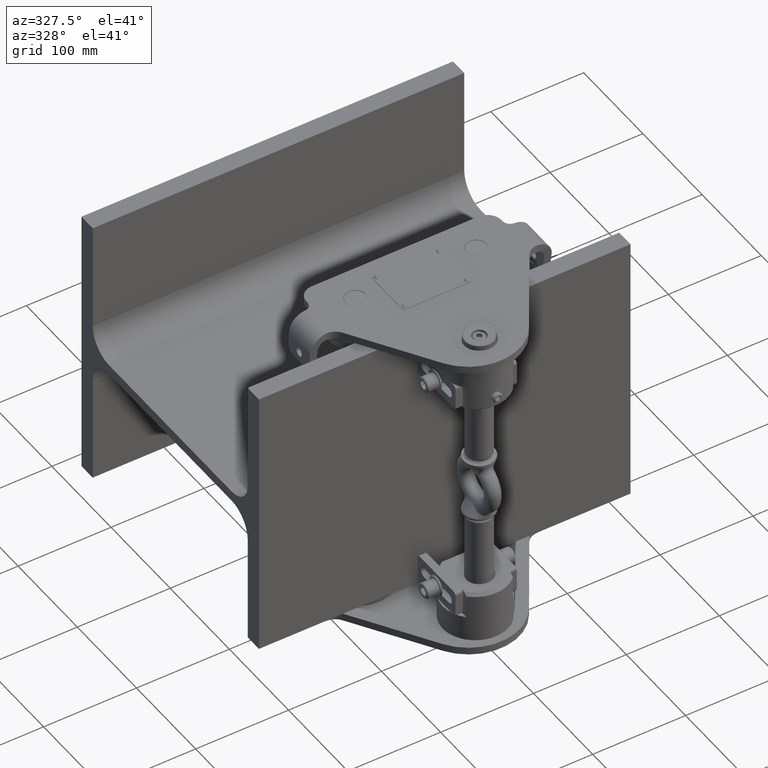
[diagram: clean part render]
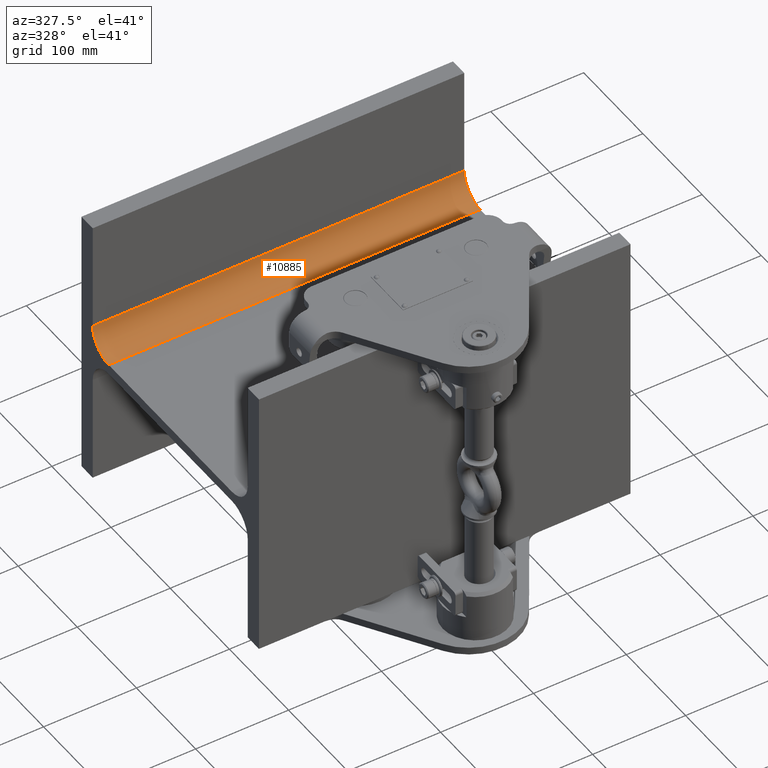
[diagram: same view with one face highlighted and labeled with its STEP entity id]
A machine part, auxiliary view. The second image highlights one B-rep face of the part: STEP entity #10885.
In plain terms, the highlighted cylindrical surface (edge-blend (fillet) strip) has radius 27 mm, axis along (1, 0, 0).
Its self-contained STEP definition (entity closure, byte-faithful):
#3310 = EDGE_CURVE ( 'NONE', #29865, #9961, #39690, .T. ) ;
#3352 = CARTESIAN_POINT ( 'NONE',  ( -200.0000000000000000, 103.9999999999999300, 5.500000000000018700 ) ) ;
#3398 = DIRECTION ( 'NONE',  ( 1.000000000000000000, 0.0000000000000000000, 0.0000000000000000000 ) ) ;
#6873 = VECTOR ( 'NONE', #13547, 1000.000000000000000 ) ;
#7888 = CARTESIAN_POINT ( 'NONE',  ( -200.0000000000000000, 103.9999999999999300, 32.50000000000000000 ) ) ;
#9439 = AXIS2_PLACEMENT_3D ( 'NONE', #39203, #42807, #40086 ) ;
#9961 = VERTEX_POINT ( 'NONE', #32023 ) ;
#10885 = ADVANCED_FACE ( 'NONE', ( #44810 ), #20258, .F. ) ;
#13181 = AXIS2_PLACEMENT_3D ( 'NONE', #21960, #50599, #50772 ) ;
#13547 = DIRECTION ( 'NONE',  ( 1.000000000000000000, 0.0000000000000000000, 0.0000000000000000000 ) ) ;
#13947 = CARTESIAN_POINT ( 'NONE',  ( -200.0000000000000000, 130.9999999999998900, 32.49999999999999300 ) ) ;
#14850 = EDGE_CURVE ( 'NONE', #20136, #9961, #18347, .T. ) ;
#17009 = ORIENTED_EDGE ( 'NONE', *, *, #23103, .T. ) ;
#17142 = EDGE_LOOP ( 'NONE', ( #17236, #43230, #18418, #17009 ) ) ;
#17236 = ORIENTED_EDGE ( 'NONE', *, *, #3310, .T. ) ;
#18347 = LINE ( 'NONE', #21962, #6873 ) ;
#18418 = ORIENTED_EDGE ( 'NONE', *, *, #47361, .F. ) ;
#20038 = DIRECTION ( 'NONE',  ( 0.0000000000000000000, 0.0000000000000000000, -1.000000000000000000 ) ) ;
#20136 = VERTEX_POINT ( 'NONE', #13947 ) ;
#20258 = CYLINDRICAL_SURFACE ( 'NONE', #9439, 26.99999999999997500 ) ;
#21266 = VERTEX_POINT ( 'NONE', #3352 ) ;
#21960 = CARTESIAN_POINT ( 'NONE',  ( 200.0000000000000000, 103.9999999999999300, 32.50000000000000000 ) ) ;
#21962 = CARTESIAN_POINT ( 'NONE',  ( -200.0000000000000000, 130.9999999999998900, 32.49999999999999300 ) ) ;
#23103 = EDGE_CURVE ( 'NONE', #21266, #29865, #44744, .T. ) ;
#23357 = AXIS2_PLACEMENT_3D ( 'NONE', #7888, #3398, #20038 ) ;
#25218 = CARTESIAN_POINT ( 'NONE',  ( 200.0000000000000000, 103.9999999999999300, 5.500000000000018700 ) ) ;
#25949 = CIRCLE ( 'NONE', #23357, 26.99999999999997500 ) ;
#29865 = VERTEX_POINT ( 'NONE', #25218 ) ;
#32023 = CARTESIAN_POINT ( 'NONE',  ( 200.0000000000000000, 130.9999999999998900, 32.49999999999999300 ) ) ;
#33723 = CARTESIAN_POINT ( 'NONE',  ( -200.0000000000000000, 103.9999999999999300, 5.500000000000018700 ) ) ;
#39203 = CARTESIAN_POINT ( 'NONE',  ( -200.0000000000000000, 103.9999999999999300, 32.50000000000000000 ) ) ;
#39690 = CIRCLE ( 'NONE', #13181, 26.99999999999997500 ) ;
#40086 = DIRECTION ( 'NONE',  ( 0.0000000000000000000, 0.0000000000000000000, -1.000000000000000000 ) ) ;
#42807 = DIRECTION ( 'NONE',  ( 1.000000000000000000, 0.0000000000000000000, 0.0000000000000000000 ) ) ;
#43230 = ORIENTED_EDGE ( 'NONE', *, *, #14850, .F. ) ;
#44744 = LINE ( 'NONE', #33723, #49211 ) ;
#44810 = FACE_OUTER_BOUND ( 'NONE', #17142, .T. ) ;
#46317 = DIRECTION ( 'NONE',  ( 1.000000000000000000, 0.0000000000000000000, 0.0000000000000000000 ) ) ;
#47361 = EDGE_CURVE ( 'NONE', #21266, #20136, #25949, .T. ) ;
#49211 = VECTOR ( 'NONE', #46317, 1000.000000000000000 ) ;
#50599 = DIRECTION ( 'NONE',  ( 1.000000000000000000, 0.0000000000000000000, 0.0000000000000000000 ) ) ;
#50772 = DIRECTION ( 'NONE',  ( 0.0000000000000000000, 0.0000000000000000000, -1.000000000000000000 ) ) ;